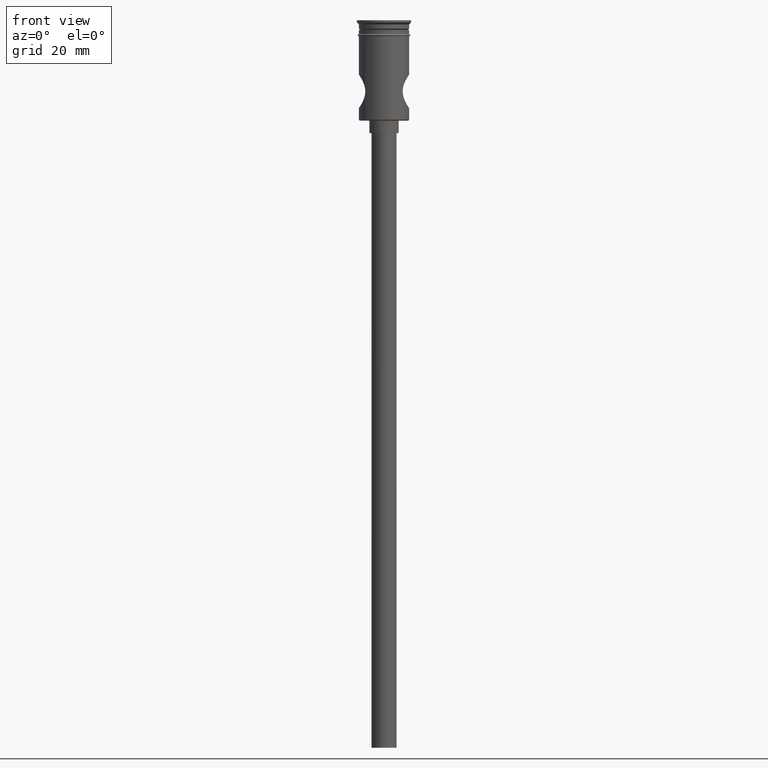
[diagram: clean part render]
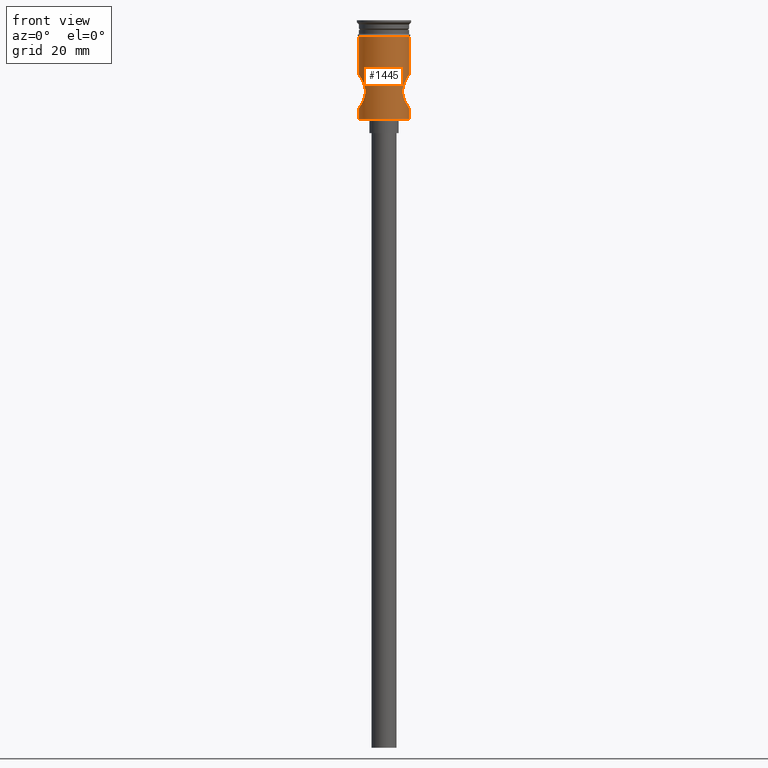
[diagram: same view with one face highlighted and labeled with its STEP entity id]
A machine part, front view. The second image highlights one B-rep face of the part: STEP entity #1445.
In plain terms, the highlighted cylindrical surface (edge-blend (fillet) strip) has radius 6 mm, axis along (-0, -0, 1).
Its self-contained STEP definition (entity closure, byte-faithful):
#12 = CARTESIAN_POINT ( 'NONE',  ( -5.476434227958207224, -2.461837270032277036, -13.83697842493743124 ) ) ;
#22 = CARTESIAN_POINT ( 'NONE',  ( -4.478683235531862650, -3.992711086781060015, -17.27669624262845005 ) ) ;
#30 = CARTESIAN_POINT ( 'NONE',  ( -4.591041808995889539, -3.863597314276565164, -18.06934695620069320 ) ) ;
#31 = LINE ( 'NONE', #254, #240 ) ;
#33 = CARTESIAN_POINT ( 'NONE',  ( 4.496976719000949529, -3.972684566356398328, -16.46183091757619721 ) ) ;
#65 = ORIENTED_EDGE ( 'NONE', *, *, #73, .T. ) ;
#73 = EDGE_CURVE ( 'NONE', #1027, #741, #31, .T. ) ;
#77 = EDGE_CURVE ( 'NONE', #843, #1020, #373, .T. ) ;
#128 = VERTEX_POINT ( 'NONE', #615 ) ;
#130 = CARTESIAN_POINT ( 'NONE',  ( -5.963516332756119809, -0.6739983983561910197, -13.05488329690675897 ) ) ;
#136 = CARTESIAN_POINT ( 'NONE',  ( 6.000000000000000000, 0.000000000000000000, -3.799999999999998490 ) ) ;
#140 = CARTESIAN_POINT ( 'NONE',  ( 4.812980838828969432, -3.584886833645908766, -15.20686804412652116 ) ) ;
#141 = EDGE_LOOP ( 'NONE', ( #1147, #924, #65, #184, #748, #949, #1006, #1168 ) ) ;
#151 = CARTESIAN_POINT ( 'NONE',  ( -4.813287987224463826, -3.584502662014732888, -15.20585560854699025 ) ) ;
#169 = VECTOR ( 'NONE', #238, 1000.000000000000000 ) ;
#171 = CARTESIAN_POINT ( 'NONE',  ( 5.909894408226809226, -1.069461442341119284, -13.13625666965422312 ) ) ;
#182 = CYLINDRICAL_SURFACE ( 'NONE', #617, 5.999999999999997335 ) ;
#184 = ORIENTED_EDGE ( 'NONE', *, *, #229, .F. ) ;
#211 = DIRECTION ( 'NONE',  ( -1.000000000000000000, 0.000000000000000000, 0.000000000000000000 ) ) ;
#216 = EDGE_CURVE ( 'NONE', #128, #1027, #614, .T. ) ;
#217 = AXIS2_PLACEMENT_3D ( 'NONE', #1110, #1012, #211 ) ;
#229 = EDGE_CURVE ( 'NONE', #325, #741, #1210, .T. ) ;
#233 = CARTESIAN_POINT ( 'NONE',  ( -4.589371484154255221, -3.865580797907776311, -15.93709879797099838 ) ) ;
#238 = DIRECTION ( 'NONE',  ( -0.000000000000000000, -0.000000000000000000, 1.000000000000000000 ) ) ;
#240 = VECTOR ( 'NONE', #711, 1000.000000000000000 ) ;
#248 = CARTESIAN_POINT ( 'NONE',  ( 4.695721265758812102, -3.735538961856250673, -15.56388279734573210 ) ) ;
#250 = CARTESIAN_POINT ( 'NONE',  ( -4.503329929757906136, -3.964891535778144682, -17.54583673630848040 ) ) ;
#254 = CARTESIAN_POINT ( 'NONE',  ( 5.999999999999997335, 0.000000000000000000, 0.000000000000000000 ) ) ;
#257 = CARTESIAN_POINT ( 'NONE',  ( -5.383657517074644794, -2.656633614838566082, -13.99882376761189384 ) ) ;
#266 = LINE ( 'NONE', #1428, #1309 ) ;
#296 = CARTESIAN_POINT ( 'NONE',  ( 5.981295349059708499, -0.5428679769166553370, -13.02790298971887850 ) ) ;
#313 = CARTESIAN_POINT ( 'NONE',  ( 5.383857059222176389, -2.656136703825480172, -20.00147985586160360 ) ) ;
#325 = VERTEX_POINT ( 'NONE', #418 ) ;
#362 = CARTESIAN_POINT ( 'NONE',  ( -4.521451790501866519, -3.944329598407791071, -17.67822252913731162 ) ) ;
#368 = CARTESIAN_POINT ( 'NONE',  ( -4.496571596818669470, -3.973146032982571185, -16.46466415118837645 ) ) ;
#372 = CARTESIAN_POINT ( 'NONE',  ( -5.910558363407835358, -1.065472474882100284, -20.86475527808674713 ) ) ;
#373 = CIRCLE ( 'NONE', #1461, 6.000000000000000000 ) ;
#392 = LINE ( 'NONE', #1296, #1162 ) ;
#396 = DIRECTION ( 'NONE',  ( 1.000000000000000000, 0.000000000000000000, 0.000000000000000000 ) ) ;
#412 = CARTESIAN_POINT ( 'NONE',  ( 4.903670365680997456, -3.461664301119387943, -14.97966456857568751 ) ) ;
#418 = CARTESIAN_POINT ( 'NONE',  ( 5.999999999999997335, 1.032865049536733409E-19, -13.00000000000000178 ) ) ;
#422 = CARTESIAN_POINT ( 'NONE',  ( 5.094941177298610846, -3.173493986384484877, -19.44836001449218799 ) ) ;
#427 = CARTESIAN_POINT ( 'NONE',  ( 4.590872927876619158, -3.863799755992654461, -18.06881075205812692 ) ) ;
#438 = CARTESIAN_POINT ( 'NONE',  ( 5.189877563605831412, -3.017637752822130981, -14.36220871751616279 ) ) ;
#452 = CARTESIAN_POINT ( 'NONE',  ( 5.999999999999997335, 1.032865049536733409E-19, -13.00000000000000178 ) ) ;
#453 = VERTEX_POINT ( 'NONE', #940 ) ;
#467 = CARTESIAN_POINT ( 'NONE',  ( -4.471926352484669742, -4.000234342895624629, -16.73210661165612478 ) ) ;
#472 = LINE ( 'NONE', #1278, #169 ) ;
#474 = CARTESIAN_POINT ( 'NONE',  ( -5.649252793255032934, -2.034506580944978271, -20.45365450866940193 ) ) ;
#482 = DIRECTION ( 'NONE',  ( -0.000000000000000000, -0.000000000000000000, 1.000000000000000000 ) ) ;
#483 = CARTESIAN_POINT ( 'NONE',  ( 4.471969905858021122, -4.000185648662160531, -16.72948623710961868 ) ) ;
#506 = CARTESIAN_POINT ( 'NONE',  ( 5.999999999999997335, 0.000000000000000000, -21.00000000000000355 ) ) ;
#571 = CARTESIAN_POINT ( 'NONE',  ( -5.092719808373196599, -3.176950723007532229, -19.44358897106424067 ) ) ;
#580 = CARTESIAN_POINT ( 'NONE',  ( -5.977293684551374220, -0.5386543696670904602, -13.03412758888619116 ) ) ;
#586 = CARTESIAN_POINT ( 'NONE',  ( -5.999999999999997335, -0.2736934833754732788, -20.99999999999999645 ) ) ;
#591 = CARTESIAN_POINT ( 'NONE',  ( -5.726993910597676596, -1.806673378235915894, -20.57837121075087694 ) ) ;
#601 = CARTESIAN_POINT ( 'NONE',  ( -4.904334778770657266, -3.460699021627381633, -14.97811247933653789 ) ) ;
#614 = CIRCLE ( 'NONE', #217, 5.999999999999997335 ) ;
#615 = CARTESIAN_POINT ( 'NONE',  ( -5.999999999999997335, 7.347880794884116778E-16, -23.80000000000000782 ) ) ;
#617 = AXIS2_PLACEMENT_3D ( 'NONE', #632, #482, #396 ) ;
#632 = CARTESIAN_POINT ( 'NONE',  ( 0.000000000000000000, 0.000000000000000000, 0.000000000000000000 ) ) ;
#635 = CARTESIAN_POINT ( 'NONE',  ( -5.999999999999997335, -0.1348394930680405501, -13.00000000000000355 ) ) ;
#648 = CARTESIAN_POINT ( 'NONE',  ( 5.381440153112923674, -2.661027735845788555, -14.00283269631730754 ) ) ;
#652 = CARTESIAN_POINT ( 'NONE',  ( 5.726721313513248646, -1.807412029573764567, -20.57793071042115685 ) ) ;
#653 = EDGE_CURVE ( 'NONE', #325, #1020, #392, .T. ) ;
#687 = CARTESIAN_POINT ( 'NONE',  ( -5.191140967328530920, -3.015547360259485998, -14.35969034782403853 ) ) ;
#708 = CARTESIAN_POINT ( 'NONE',  ( -5.857462785930374949, -1.323879775164644057, -20.78366906037869910 ) ) ;
#711 = DIRECTION ( 'NONE',  ( -0.000000000000000000, -0.000000000000000000, 1.000000000000000000 ) ) ;
#741 = VERTEX_POINT ( 'NONE', #506 ) ;
#743 = EDGE_CURVE ( 'NONE', #823, #843, #266, .T. ) ;
#745 = DIRECTION ( 'NONE',  ( -0.000000000000000000, -0.000000000000000000, 1.000000000000000000 ) ) ;
#748 = ORIENTED_EDGE ( 'NONE', *, *, #653, .T. ) ;
#771 = CARTESIAN_POINT ( 'NONE',  ( 5.981315622377779029, -0.5422886287917132453, -20.97212570072115057 ) ) ;
#783 = CARTESIAN_POINT ( 'NONE',  ( 5.910224399078535917, -1.067455424808947173, -20.86424616908553276 ) ) ;
#804 = CARTESIAN_POINT ( 'NONE',  ( -5.726539468168462044, -1.808257897405587622, -13.42234802356430201 ) ) ;
#813 = CARTESIAN_POINT ( 'NONE',  ( -5.999999999999997335, 0.000000000000000000, -21.00000000000000000 ) ) ;
#823 = VERTEX_POINT ( 'NONE', #1024 ) ;
#831 = CARTESIAN_POINT ( 'NONE',  ( -5.383168773068585544, -2.657528158016941422, -20.00025070472698729 ) ) ;
#843 = VERTEX_POINT ( 'NONE', #1351 ) ;
#847 = DIRECTION ( 'NONE',  ( -0.000000000000000000, -0.000000000000000000, 1.000000000000000000 ) ) ;
#886 = CARTESIAN_POINT ( 'NONE',  ( 4.658564655011906197, -3.783396392401491504, -18.32386562586675538 ) ) ;
#919 = CARTESIAN_POINT ( 'NONE',  ( -5.647456945233588321, -2.039167636317594123, -13.54932708310013645 ) ) ;
#924 = ORIENTED_EDGE ( 'NONE', *, *, #216, .T. ) ;
#933 = CARTESIAN_POINT ( 'NONE',  ( -4.472242783135714106, -3.999880562432159614, -17.13916142668633213 ) ) ;
#940 = CARTESIAN_POINT ( 'NONE',  ( -5.999999999999997335, 0.000000000000000000, -21.00000000000000000 ) ) ;
#945 = CARTESIAN_POINT ( 'NONE',  ( -4.815777407978871771, -3.581151401136684953, -18.80060207983888887 ) ) ;
#947 = CARTESIAN_POINT ( 'NONE',  ( 5.857856019569841699, -1.322596816769211481, -13.21570480751898025 ) ) ;
#949 = ORIENTED_EDGE ( 'NONE', *, *, #77, .F. ) ;
#974 = CARTESIAN_POINT ( 'NONE',  ( -5.999999999999997335, 7.346847929928983029E-16, -13.00000000000000178 ) ) ;
#991 = CARTESIAN_POINT ( 'NONE',  ( 5.649709804834208704, -2.033012498713171468, -20.45435978024744017 ) ) ;
#1006 = ORIENTED_EDGE ( 'NONE', *, *, #743, .F. ) ;
#1012 = DIRECTION ( 'NONE',  ( -0.000000000000000000, -0.000000000000000000, 1.000000000000000000 ) ) ;
#1020 = VERTEX_POINT ( 'NONE', #136 ) ;
#1024 = CARTESIAN_POINT ( 'NONE',  ( -5.999999999999997335, 7.346847929928983029E-16, -13.00000000000000178 ) ) ;
#1027 = VERTEX_POINT ( 'NONE', #1065 ) ;
#1038 = CARTESIAN_POINT ( 'NONE',  ( -4.904969006695425016, -3.459781783056855797, -19.02337662573054899 ) ) ;
#1045 = CARTESIAN_POINT ( 'NONE',  ( -5.995459719443723579, -0.2695386314927114557, -13.00680060135632665 ) ) ;
#1046 = EDGE_CURVE ( 'NONE', #453, #823, #1414, .T. ) ;
#1050 = CARTESIAN_POINT ( 'NONE',  ( -5.476259375248749173, -2.462490082215232690, -20.16276605017704782 ) ) ;
#1054 = CARTESIAN_POINT ( 'NONE',  ( 4.659573210257435427, -3.780337466250410561, -15.68607491293215084 ) ) ;
#1061 = DIRECTION ( 'NONE',  ( -0.000000000000000000, -0.000000000000000000, 1.000000000000000000 ) ) ;
#1063 = CARTESIAN_POINT ( 'NONE',  ( 4.566410052139550757, -3.892191516930989525, -16.06790164049536429 ) ) ;
#1065 = CARTESIAN_POINT ( 'NONE',  ( 5.999999999999997335, 0.000000000000000000, -23.80000000000000782 ) ) ;
#1090 = FACE_OUTER_BOUND ( 'NONE', #141, .T. ) ;
#1099 = CARTESIAN_POINT ( 'NONE',  ( 4.497954016143989264, -3.971583117973676025, -17.54574033674490607 ) ) ;
#1106 = CARTESIAN_POINT ( 'NONE',  ( 5.476104105474130179, -2.462661959051751115, -13.83753213007001825 ) ) ;
#1110 = CARTESIAN_POINT ( 'NONE',  ( 0.000000000000000000, 0.000000000000000000, -23.80000000000000782 ) ) ;
#1119 = CARTESIAN_POINT ( 'NONE',  ( 5.999999999999997335, 0.000000000000000000, -21.00000000000000355 ) ) ;
#1125 = CARTESIAN_POINT ( 'NONE',  ( 4.815345988703962909, -3.581725270876520373, -18.79943117160749466 ) ) ;
#1135 = CARTESIAN_POINT ( 'NONE',  ( 4.905092851350609351, -3.459704293921745055, -19.02385203036241634 ) ) ;
#1147 = ORIENTED_EDGE ( 'NONE', *, *, #1345, .F. ) ;
#1153 = CARTESIAN_POINT ( 'NONE',  ( 5.478456530086701193, -2.457412205291197083, -20.16652278763330486 ) ) ;
#1162 = VECTOR ( 'NONE', #847, 1000.000000000000000 ) ;
#1166 = CARTESIAN_POINT ( 'NONE',  ( -5.909734172871756286, -1.070628588321905106, -13.13649990372544707 ) ) ;
#1168 = ORIENTED_EDGE ( 'NONE', *, *, #1046, .F. ) ;
#1177 = CARTESIAN_POINT ( 'NONE',  ( 0.000000000000000000, 0.000000000000000000, -3.799999999999998490 ) ) ;
#1179 = CARTESIAN_POINT ( 'NONE',  ( 4.594981970458709597, -3.858589710197852796, -15.93762721160692841 ) ) ;
#1181 = CARTESIAN_POINT ( 'NONE',  ( -5.191849950367998012, -3.014242200430727436, -19.64164800058794214 ) ) ;
#1210 = B_SPLINE_CURVE_WITH_KNOTS ( 'NONE', 3,
 ( #452, #1323, #296, #171, #947, #1438, #1236, #1106, #648, #438, #1250, #412, #140, #248, #1054, #1179, #1063, #33, #483, #1305, #1099, #427, #886, #1125, #1135, #422, #1341, #313, #1153, #991, #652, #1355, #783, #771, #1237, #1119 ),
 .UNSPECIFIED., .F., .F.,
 ( 4, 2, 2, 2, 2, 2, 2, 2, 2, 2, 2, 2, 2, 2, 2, 2, 2, 4 ),
 ( 0.01292789089967558841, 0.01373481658167572013, 0.01454174226367585185, 0.01534866794567598357, 0.01615559362767611529, 0.01696251930967624874, 0.01776944499167637873, 0.01817290783267644372, 0.01857637067367650524, 0.01938329635567663523, 0.02019022203767676174, 0.02099714771967688826, 0.02180407340167701824, 0.02261099908367714129, 0.02341792476567727127, 0.02422485044767740126, 0.02503177612967752430, 0.02583870181167765429 ),
 .UNSPECIFIED. ) ;
#1236 = CARTESIAN_POINT ( 'NONE',  ( 5.647852088979878005, -2.038182248857269396, -13.54866401616082072 ) ) ;
#1237 = CARTESIAN_POINT ( 'NONE',  ( 5.999999999999997335, -0.2733318867810513031, -21.00000000000000355 ) ) ;
#1250 = CARTESIAN_POINT ( 'NONE',  ( 5.092437400807709125, -3.177449308448083709, -14.55690956341038245 ) ) ;
#1274 = CARTESIAN_POINT ( 'NONE',  ( -5.857601659980625541, -1.323462767520508399, -13.21610827440704661 ) ) ;
#1278 = CARTESIAN_POINT ( 'NONE',  ( -5.999999999999997335, 7.347880794884116778E-16, 0.000000000000000000 ) ) ;
#1279 = CARTESIAN_POINT ( 'NONE',  ( -5.981377723958397397, -0.5413430384848010313, -20.97221760090189235 ) ) ;
#1283 = CARTESIAN_POINT ( 'NONE',  ( -4.655957912614353766, -3.786615440986035086, -15.68502588106870199 ) ) ;
#1286 = CARTESIAN_POINT ( 'NONE',  ( -5.092532074683506771, -3.177271535275487224, -14.55676189133447807 ) ) ;
#1296 = CARTESIAN_POINT ( 'NONE',  ( 5.999999999999997335, 0.000000000000000000, 0.000000000000000000 ) ) ;
#1305 = CARTESIAN_POINT ( 'NONE',  ( 4.472303672293368670, -3.999812486286545177, -17.27597643780235970 ) ) ;
#1309 = VECTOR ( 'NONE', #745, 1000.000000000000000 ) ;
#1323 = CARTESIAN_POINT ( 'NONE',  ( 5.999999999999997335, -0.2693226933892790553, -13.00000000000000000 ) ) ;
#1341 = CARTESIAN_POINT ( 'NONE',  ( 5.192588128681415505, -3.012973207551336685, -19.64309212195294307 ) ) ;
#1345 = EDGE_CURVE ( 'NONE', #128, #453, #472, .T. ) ;
#1351 = CARTESIAN_POINT ( 'NONE',  ( -6.000000000000000000, 7.347880794884119736E-16, -3.799999999999998490 ) ) ;
#1355 = CARTESIAN_POINT ( 'NONE',  ( 5.856852607584091430, -1.326405963621355211, -20.78272040109924745 ) ) ;
#1407 = CARTESIAN_POINT ( 'NONE',  ( -4.658800709564933307, -3.783111596241941932, -18.32471878455887548 ) ) ;
#1414 = B_SPLINE_CURVE_WITH_KNOTS ( 'NONE', 3,
 ( #813, #586, #1279, #372, #708, #591, #474, #1050, #831, #1181, #571, #1038, #945, #1407, #30, #362, #250, #22, #933, #467, #368, #233, #1283, #151, #601, #1286, #687, #257, #12, #919, #804, #1274, #1166, #130, #580, #1045, #635, #974 ),
 .UNSPECIFIED., .F., .F.,
 ( 4, 2, 2, 2, 2, 2, 2, 2, 2, 2, 2, 2, 2, 2, 2, 2, 2, 2, 4 ),
 ( 0.000000000000000000, 0.0008079931812297209146, 0.001615986362459441612, 0.002423979543689161985, 0.003231972724918882791, 0.004039965906148603597, 0.004847959087378323970, 0.005655952268608045209, 0.006059948859222905396, 0.006463945449837766449, 0.007271938631067487689, 0.008079931812297208929, 0.008887924993526937975, 0.009695918174756667021, 0.01050391135598639780, 0.01131190453721612511, 0.01211989771844585589, 0.01252389430906072042, 0.01292789089967558668 ),
 .UNSPECIFIED. ) ;
#1428 = CARTESIAN_POINT ( 'NONE',  ( -5.999999999999997335, 7.347880794884116778E-16, 0.000000000000000000 ) ) ;
#1438 = CARTESIAN_POINT ( 'NONE',  ( 5.726042320256659046, -1.810021776766354673, -13.42313354859388497 ) ) ;
#1439 = DIRECTION ( 'NONE',  ( 1.000000000000000000, 0.000000000000000000, 0.000000000000000000 ) ) ;
#1445 = ADVANCED_FACE ( 'NONE', ( #1090 ), #182, .T. ) ;
#1461 = AXIS2_PLACEMENT_3D ( 'NONE', #1177, #1061, #1439 ) ;